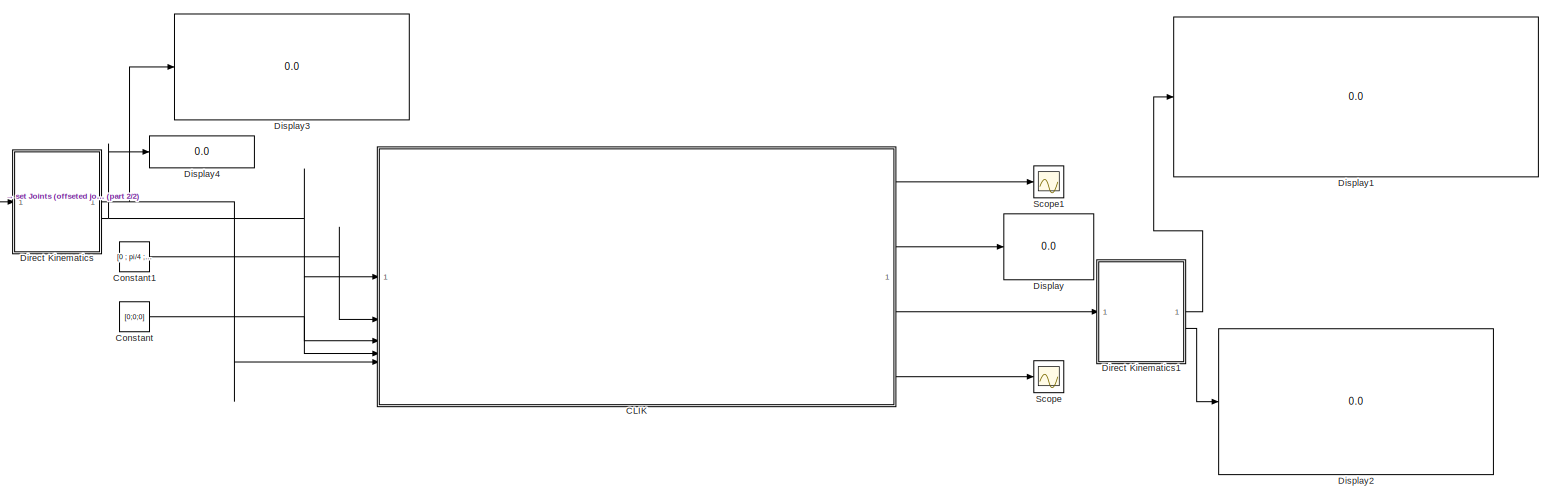
[diagram: root canvas - part 1/2, most of the canvas]
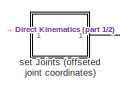
[diagram: root canvas - part 2/2, middle left region]
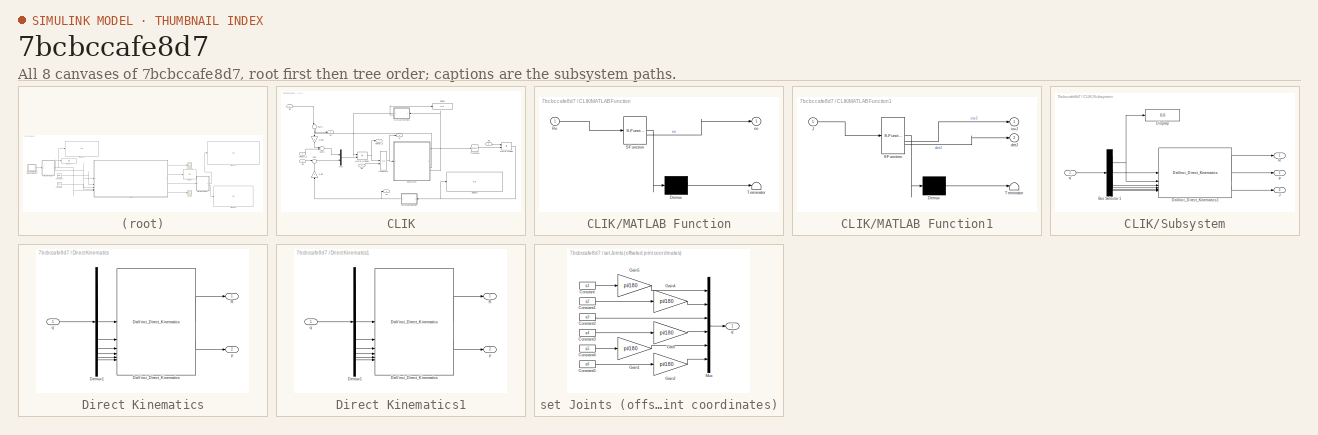
[diagram: thumbnail index - all 8 canvases of the model, root first then tree order]
MODEL slx_7bcbccafe8d7
KIND model
CONFIG AbsTol = auto
CONFIG EnableMultiTasking = off
CONFIG FixedStep = auto
CONFIG MaxStep = auto
CONFIG MinStep = auto
CONFIG RelTol = 1e-3
CONFIG SampleTimeConstraint = Unconstrained
CONFIG SolverName = VariableStepAuto
CONFIG StartTime = 0.0
CONFIG StopTime = 10.0
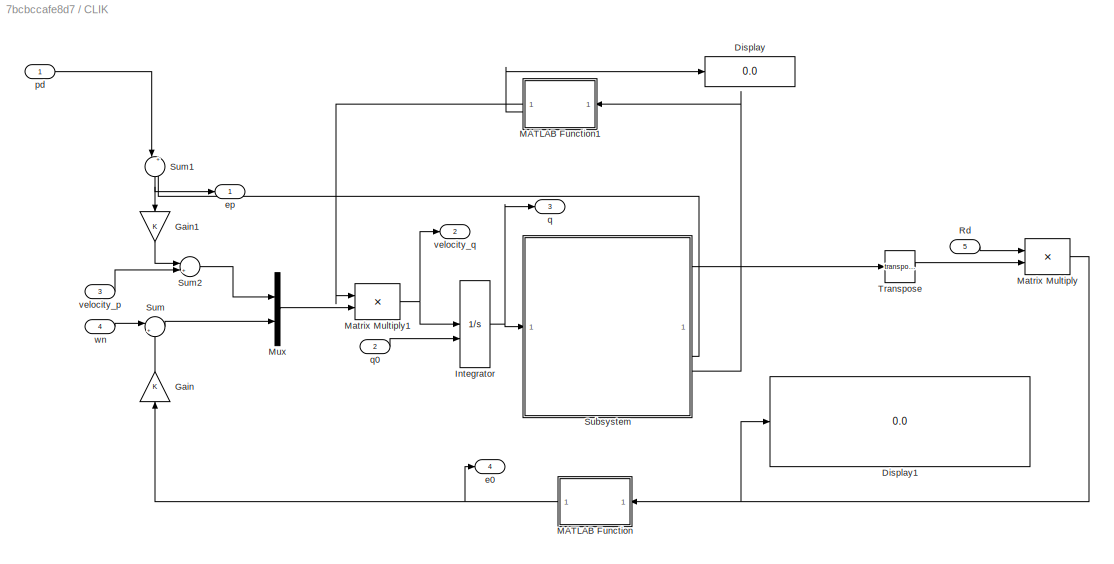
BLOCK [SubSystem] CLIK
BLOCK [Display] CLIK/Display
  Decimation = 1
BLOCK [Display] CLIK/Display1
  Decimation = 1
BLOCK [Gain] CLIK/Gain
  NameLocation = right
BLOCK [Gain] CLIK/Gain1
  NameLocation = left
BLOCK [Integrator] CLIK/Integrator
  InitialCondition = q(0)
  InitialConditionSource = external
BLOCK [SubSystem] CLIK/MATLAB Function
  ErrorFcn = Stateflow.Translate.translate
  LibrarySourceBlock = simulink/User-Defined\nFunctions/MATLAB Function
  NameLocation = top
  PermitHierarchicalResolution = ExplicitOnly
  SFBlockType = MATLAB Function
  TreatAsAtomicUnit = on
BLOCK [Demux] CLIK/MATLAB Function/ Demux 
  Outputs = 1
BLOCK [S-Function] CLIK/MATLAB Function/ SFunction 
  EnableBusSupport = on
  FunctionName = sf_sfun
  PortCounts = [1 2]
  SFcnIsStateOwnerBlock = off
  SFunctionDeploymentMode = off
  Tag = Stateflow S-Function 3
BLOCK [Terminator] CLIK/MATLAB Function/ Terminator 
BLOCK [Inport] CLIK/MATLAB Function/Re
BLOCK [Outport] CLIK/MATLAB Function/eo
BLOCK [SubSystem] CLIK/MATLAB Function1
  ErrorFcn = Stateflow.Translate.translate
  LibrarySourceBlock = simulink/User-Defined\nFunctions/MATLAB Function
  NameLocation = top
  PermitHierarchicalResolution = ExplicitOnly
  SFBlockType = MATLAB Function
  TreatAsAtomicUnit = on
BLOCK [Demux] CLIK/MATLAB Function1/ Demux 
  Outputs = 1
BLOCK [S-Function] CLIK/MATLAB Function1/ SFunction 
  EnableBusSupport = on
  FunctionName = sf_sfun
  PortCounts = [1 3]
  SFcnIsStateOwnerBlock = off
  SFunctionDeploymentMode = off
  Tag = Stateflow S-Function 4
BLOCK [Terminator] CLIK/MATLAB Function1/ Terminator 
BLOCK [Inport] CLIK/MATLAB Function1/J
BLOCK [Outport] CLIK/MATLAB Function1/detJ
  Port = 2
BLOCK [Outport] CLIK/MATLAB Function1/invJ
BLOCK [Product] CLIK/Matrix Multiply
  Multiplication = Matrix(*)
BLOCK [Product] CLIK/Matrix Multiply1
  Multiplication = Matrix(*)
BLOCK [Mux] CLIK/Mux
  DisplayOption = bar
  Inputs = 2
BLOCK [Inport] CLIK/Rd
  Port = 5
BLOCK [SubSystem] CLIK/Subsystem
BLOCK [Demux] CLIK/Subsystem/Bus Selector 1
  Outputs = 6
BLOCK [Reference] CLIK/Subsystem/DaVinci_Direct_Kinematics1  REF=DaVinci_LibJ/DaVinci_Direct_Kinematics
  LibrarySourceBlock = simulink/User-Defined\nFunctions/MATLAB Function
  SourceBlock = DaVinci_LibJ/DaVinci_Direct_Kinematics
  SourceType = SubSystem
BLOCK [Display] CLIK/Subsystem/Display
  Decimation = 1
BLOCK [Outport] CLIK/Subsystem/J
  Port = 3
BLOCK [Outport] CLIK/Subsystem/R
BLOCK [Outport] CLIK/Subsystem/p
  Port = 2
BLOCK [Inport] CLIK/Subsystem/q'
BLOCK [Sum] CLIK/Sum
  Inputs = |++
BLOCK [Sum] CLIK/Sum1
  Inputs = |+-
  NameLocation = left
BLOCK [Sum] CLIK/Sum2
  Inputs = |++
BLOCK [Math] CLIK/Transpose
  Operator = transpose
BLOCK [Outport] CLIK/e0
  Port = 4
BLOCK [Outport] CLIK/ep
BLOCK [Inport] CLIK/pd
BLOCK [Outport] CLIK/q
  Port = 3
BLOCK [Inport] CLIK/q0
  Port = 2
BLOCK [Inport] CLIK/velocity_p
  Port = 3
BLOCK [Outport] CLIK/velocity_q
  Port = 2
BLOCK [Inport] CLIK/wn
  Port = 4
BLOCK [Constant] Constant
  Value = [0;0;0]
BLOCK [Constant] Constant1
  Value = [0 ; pi/4 ; 0.5 ; 0 ; 0 ; 0]
BLOCK [SubSystem] Direct Kinematics
BLOCK [Reference] Direct Kinematics/DaVinci_Direct_Kinematics  REF=DaVinci_Lib/DaVinci_Direct_Kinematics
  SourceBlock = DaVinci_Lib/DaVinci_Direct_Kinematics
  SourceType = SubSystem
BLOCK [Demux] Direct Kinematics/Demux1
  Outputs = 6
BLOCK [Outport] Direct Kinematics/R
BLOCK [Outport] Direct Kinematics/p
  Port = 2
BLOCK [Inport] Direct Kinematics/q'
BLOCK [SubSystem] Direct Kinematics1
BLOCK [Reference] Direct Kinematics1/DaVinci_Direct_Kinematics  REF=DaVinci_Lib/DaVinci_Direct_Kinematics
  SourceBlock = DaVinci_Lib/DaVinci_Direct_Kinematics
  SourceType = SubSystem
BLOCK [Demux] Direct Kinematics1/Demux1
  Outputs = 6
BLOCK [Outport] Direct Kinematics1/R
BLOCK [Outport] Direct Kinematics1/p
  Port = 2
BLOCK [Inport] Direct Kinematics1/q'
BLOCK [Display] Display
  Decimation = 1
BLOCK [Display] Display1
  Decimation = 1
BLOCK [Display] Display2
  Decimation = 1
BLOCK [Display] Display3
  Decimation = 1
BLOCK [Display] Display4
  Decimation = 1
BLOCK [Scope] Scope
  Floating = off
  NumInputPorts = 1
  ScopeSpecificationString = Simulink.scopes.TimeScopeBlockCfg('CurrentConfiguration', extmgr.ConfigurationSet(extmgr.Configuration('Core','General UI',true),extmgr.Configuration('Core','Source UI',true),extmgr.Configuration('Sources','WiredSimulink',true),extmgr.Configuration('Visuals','Time Domain',true,'SerializedDisplays',{struct('MinYLimReal','-1.26548','MaxYLimReal','0.28213','YLabelReal','','MinYLimMag','0.00000','MaxY...<+1353ch>
BLOCK [Scope] Scope1
  Floating = off
  NumInputPorts = 1
  ScopeSpecificationString = Simulink.scopes.TimeScopeBlockCfg('CurrentConfiguration', extmgr.ConfigurationSet(extmgr.Configuration('Core','General UI',true),extmgr.Configuration('Core','Source UI',true),extmgr.Configuration('Sources','WiredSimulink',true,'DataLoggingVariableName','ScopeData1'),extmgr.Configuration('Visuals','Time Domain',true,'SerializedDisplays',{struct('MinYLimReal','-0.41543','MaxYLimReal','0.41543','YLab...<+1389ch>
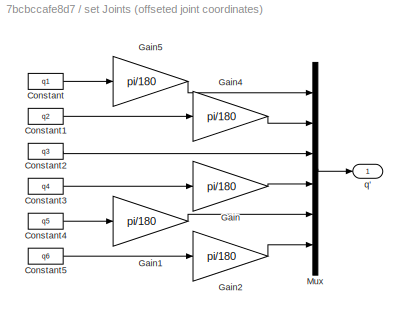
BLOCK [SubSystem] set Joints (offseted joint coordinates)
BLOCK [Constant] set Joints (offseted joint coordinates)/Constant
  Value = q1
BLOCK [Constant] set Joints (offseted joint coordinates)/Constant1
  Value = q2
BLOCK [Constant] set Joints (offseted joint coordinates)/Constant2
  Value = q3
BLOCK [Constant] set Joints (offseted joint coordinates)/Constant3
  Value = q4
BLOCK [Constant] set Joints (offseted joint coordinates)/Constant4
  Value = q5
BLOCK [Constant] set Joints (offseted joint coordinates)/Constant5
  Value = q6
BLOCK [Gain] set Joints (offseted joint coordinates)/Gain
  Gain = pi/180
BLOCK [Gain] set Joints (offseted joint coordinates)/Gain1
  Gain = pi/180
BLOCK [Gain] set Joints (offseted joint coordinates)/Gain2
  Gain = pi/180
BLOCK [Gain] set Joints (offseted joint coordinates)/Gain4
  Gain = pi/180
BLOCK [Gain] set Joints (offseted joint coordinates)/Gain5
  Gain = pi/180
BLOCK [Mux] set Joints (offseted joint coordinates)/Mux
  DisplayOption = bar
  Inputs = 6
BLOCK [Outport] set Joints (offseted joint coordinates)/q'
LINE CLIK/Gain1:1 -> CLIK/Sum2:1
LINE CLIK/Gain:1 -> CLIK/Sum:2
NET CLIK/Integrator:1 -> CLIK/Subsystem:1, CLIK/q:1
LINE CLIK/MATLAB Function1:1 -> CLIK/Matrix Multiply1:1
LINE CLIK/MATLAB Function1:2 -> CLIK/Display:1
NET CLIK/MATLAB Function:1 -> CLIK/Gain:1, CLIK/e0:1
NET CLIK/Matrix Multiply1:1 -> CLIK/Integrator:1, CLIK/velocity_q:1
NET CLIK/Matrix Multiply:1 -> CLIK/Display1:1, CLIK/MATLAB Function:1
LINE CLIK/Mux:1 -> CLIK/Matrix Multiply1:2
LINE CLIK/Rd:1 -> CLIK/Matrix Multiply:1
LINE CLIK/Subsystem/Bus Selector 1:1 -> CLIK/Subsystem/DaVinci_Direct_Kinematics1:1
NET CLIK/Subsystem/Bus Selector 1:2 -> CLIK/Subsystem/DaVinci_Direct_Kinematics1:2, CLIK/Subsystem/Display:1
LINE CLIK/Subsystem/Bus Selector 1:3 -> CLIK/Subsystem/DaVinci_Direct_Kinematics1:3
LINE CLIK/Subsystem/Bus Selector 1:4 -> CLIK/Subsystem/DaVinci_Direct_Kinematics1:4
LINE CLIK/Subsystem/Bus Selector 1:5 -> CLIK/Subsystem/DaVinci_Direct_Kinematics1:5
LINE CLIK/Subsystem/Bus Selector 1:6 -> CLIK/Subsystem/DaVinci_Direct_Kinematics1:6
LINE CLIK/Subsystem/DaVinci_Direct_Kinematics1:1 -> CLIK/Subsystem/R:1
LINE CLIK/Subsystem/DaVinci_Direct_Kinematics1:2 -> CLIK/Subsystem/p:1
LINE CLIK/Subsystem/DaVinci_Direct_Kinematics1:3 -> CLIK/Subsystem/J:1
LINE CLIK/Subsystem/q':1 -> CLIK/Subsystem/Bus Selector 1:1
LINE CLIK/Subsystem:1 -> CLIK/Transpose:1
LINE CLIK/Subsystem:2 -> CLIK/Sum1:2
LINE CLIK/Subsystem:3 -> CLIK/MATLAB Function1:1
NET CLIK/Sum1:1 -> CLIK/Gain1:1, CLIK/ep:1
LINE CLIK/Sum2:1 -> CLIK/Mux:1
LINE CLIK/Sum:1 -> CLIK/Mux:2
LINE CLIK/Transpose:1 -> CLIK/Matrix Multiply:2
LINE CLIK/pd:1 -> CLIK/Sum1:1
LINE CLIK/q0:1 -> CLIK/Integrator:2
LINE CLIK/velocity_p:1 -> CLIK/Sum2:2
LINE CLIK/wn:1 -> CLIK/Sum:1
LINE CLIK:1 -> Scope1:1
LINE CLIK:2 -> Display:1
LINE CLIK:3 -> Direct Kinematics1:1
LINE CLIK:4 -> Scope:1
LINE Constant1:1 -> CLIK:2
NET Constant:1 -> CLIK:3, CLIK:4
LINE Direct Kinematics/DaVinci_Direct_Kinematics:1 -> Direct Kinematics/R:1
LINE Direct Kinematics/DaVinci_Direct_Kinematics:2 -> Direct Kinematics/p:1
LINE Direct Kinematics/Demux1:1 -> Direct Kinematics/DaVinci_Direct_Kinematics:1
LINE Direct Kinematics/Demux1:2 -> Direct Kinematics/DaVinci_Direct_Kinematics:2
LINE Direct Kinematics/Demux1:3 -> Direct Kinematics/DaVinci_Direct_Kinematics:3
LINE Direct Kinematics/Demux1:4 -> Direct Kinematics/DaVinci_Direct_Kinematics:4
LINE Direct Kinematics/Demux1:5 -> Direct Kinematics/DaVinci_Direct_Kinematics:5
LINE Direct Kinematics/Demux1:6 -> Direct Kinematics/DaVinci_Direct_Kinematics:6
LINE Direct Kinematics/q':1 -> Direct Kinematics/Demux1:1
LINE Direct Kinematics1/DaVinci_Direct_Kinematics:1 -> Direct Kinematics1/R:1
LINE Direct Kinematics1/DaVinci_Direct_Kinematics:2 -> Direct Kinematics1/p:1
LINE Direct Kinematics1/Demux1:1 -> Direct Kinematics1/DaVinci_Direct_Kinematics:1
LINE Direct Kinematics1/Demux1:2 -> Direct Kinematics1/DaVinci_Direct_Kinematics:2
LINE Direct Kinematics1/Demux1:3 -> Direct Kinematics1/DaVinci_Direct_Kinematics:3
LINE Direct Kinematics1/Demux1:4 -> Direct Kinematics1/DaVinci_Direct_Kinematics:4
LINE Direct Kinematics1/Demux1:5 -> Direct Kinematics1/DaVinci_Direct_Kinematics:5
LINE Direct Kinematics1/Demux1:6 -> Direct Kinematics1/DaVinci_Direct_Kinematics:6
LINE Direct Kinematics1/q':1 -> Direct Kinematics1/Demux1:1
LINE Direct Kinematics1:1 -> Display1:1
LINE Direct Kinematics1:2 -> Display2:1
NET Direct Kinematics:1 -> CLIK:5, Display3:1
NET Direct Kinematics:2 -> CLIK:1, Display4:1
LINE set Joints (offseted joint coordinates)/Constant1:1 -> set Joints (offseted joint coordinates)/Gain4:1
LINE set Joints (offseted joint coordinates)/Constant2:1 -> set Joints (offseted joint coordinates)/Mux:3
LINE set Joints (offseted joint coordinates)/Constant3:1 -> set Joints (offseted joint coordinates)/Gain:1
LINE set Joints (offseted joint coordinates)/Constant4:1 -> set Joints (offseted joint coordinates)/Gain1:1
LINE set Joints (offseted joint coordinates)/Constant5:1 -> set Joints (offseted joint coordinates)/Gain2:1
LINE set Joints (offseted joint coordinates)/Constant:1 -> set Joints (offseted joint coordinates)/Gain5:1
LINE set Joints (offseted joint coordinates)/Gain1:1 -> set Joints (offseted joint coordinates)/Mux:5
LINE set Joints (offseted joint coordinates)/Gain2:1 -> set Joints (offseted joint coordinates)/Mux:6
LINE set Joints (offseted joint coordinates)/Gain4:1 -> set Joints (offseted joint coordinates)/Mux:2
LINE set Joints (offseted joint coordinates)/Gain5:1 -> set Joints (offseted joint coordinates)/Mux:1
LINE set Joints (offseted joint coordinates)/Gain:1 -> set Joints (offseted joint coordinates)/Mux:4
LINE set Joints (offseted joint coordinates)/Mux:1 -> set Joints (offseted joint coordinates)/q':1
LINE set Joints (offseted joint coordinates):1 -> Direct Kinematics:1
note: NET lines group one-source signal fan-out (src -> all destinations, sorted); 1:1 wires keep LINE
CHART CLIK/MATLAB Function1 states=1 transitions=1
  STATE_LABEL 'eML_blk_kernel()'
  STATE_LABEL "SCRIPT:\nfunction [invJ,detJ]  = invert(J)\n\ndetJ = det(J);\nif -0.1 < detJ < 0.1\n    invJ = J';\nelse\n    invJ=inv(J);\nend\nend"
CHART CLIK/MATLAB Function states=1 transitions=1
  STATE_LABEL 'eML_blk_kernel()'
  STATE_LABEL "SCRIPT:\nfunction eo = orint_error(Re)\n\nd=diag (Re);\nidx=find(d == max(d));\ni=idx (1);\nid=eye (3,3);\ntr=trace(Re);\n\nif -1 < tr && tr < 3\n    theta = acos ((trace(Re)-1)/2);\n    r=[Re(3,2) - Re(2, 3) ;\n        Re(1,3) - Re(3, 1);\n        Re(2,1) - Re(1,2)]* (1/(2*sin(theta)));\n\nelseif tr == -1\n    theta=pi;\n    r=(id(:,i)+Re(:,i))/sqrt (2+2*Re(i,i));\n    \nelse\n    theta=0; \n    r= [0 0 1]';\nend\nr=r....<+25ch>"
CHART  states=0 transitions=0
CHART  states=0 transitions=0
